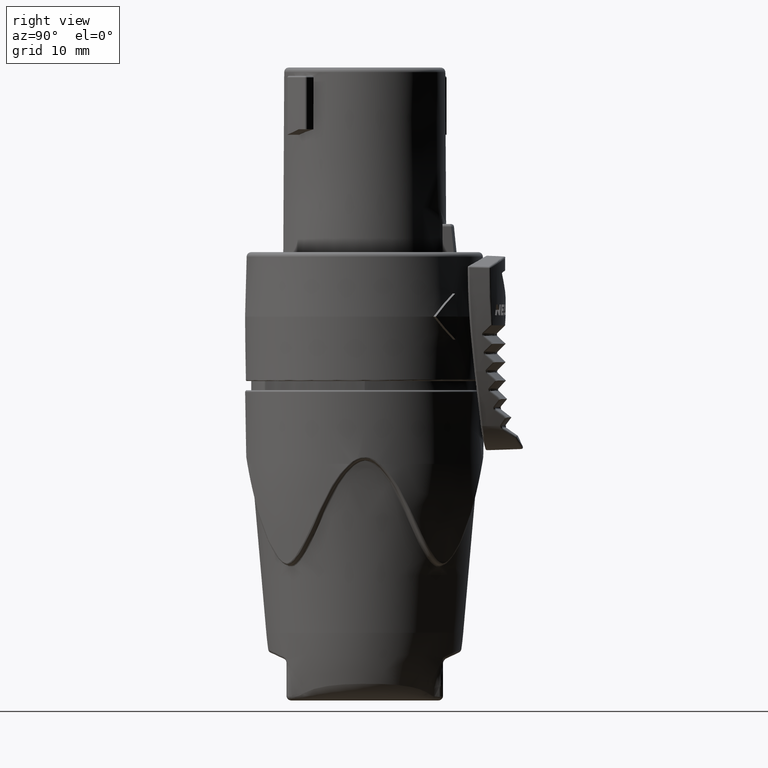
[diagram: clean part render]
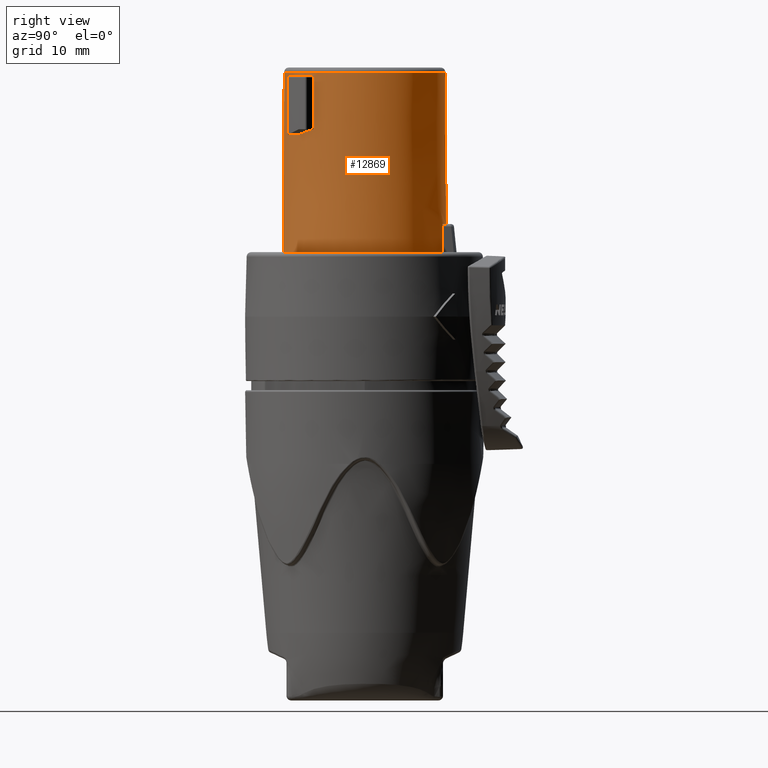
[diagram: same view with one face highlighted and labeled with its STEP entity id]
A machine part, right view. The second image highlights one B-rep face of the part: STEP entity #12869.
In plain terms, the highlighted conical surface has half-angle 0.291 deg.
Its self-contained STEP definition (entity closure, byte-faithful):
#2=CARTESIAN_POINT('',(0.E0,0.E0,2.955253771147E1));
#3=DIRECTION('',(0.E0,0.E0,-1.E0));
#4=DIRECTION('',(0.E0,1.E0,0.E0));
#5=AXIS2_PLACEMENT_3D('',#2,#3,#4);
#374=CARTESIAN_POINT('',(2.6E0,8.442469314720E0,1.305E1));
#375=CARTESIAN_POINT('',(2.6E0,8.447868552382E0,1.203333333571E1));
#376=CARTESIAN_POINT('',(2.6E0,8.453267341372E0,1.101666666904E1));
#377=CARTESIAN_POINT('',(2.6E0,8.458665684263E0,1.E1));
#383=CARTESIAN_POINT('',(6.776809895754E0,-5.585982544906E0,2.334981907153E1));
#384=CARTESIAN_POINT('',(6.617204337442E0,-5.780049448619E0,2.329172739908E1));
#385=CARTESIAN_POINT('',(6.283824538226E0,-6.150254838396E0,2.317012139330E1));
#386=CARTESIAN_POINT('',(5.732879583647E0,-6.669017694595E0,2.296970251727E1));
#387=CARTESIAN_POINT('',(5.335825114422E0,-6.982479121226E0,2.282516235616E1));
#388=CARTESIAN_POINT('',(5.129318238067E0,-7.131479158159E0,2.275E1));
#390=CARTESIAN_POINT('',(0.E0,0.E0,1.E1));
#391=DIRECTION('',(0.E0,0.E0,-1.E0));
#392=DIRECTION('',(2.938105858564E-1,9.558636616373E-1,0.E0));
#393=AXIS2_PLACEMENT_3D('',#390,#391,#392);
#417=CARTESIAN_POINT('',(0.E0,0.E0,2.275E1));
#418=DIRECTION('',(0.E0,0.E0,1.E0));
#419=DIRECTION('',(4.925094846230E-1,-8.703070765864E-1,0.E0));
#420=AXIS2_PLACEMENT_3D('',#417,#418,#419);
#467=DIRECTION('',(0.E0,-5.075422946028E-3,9.999871199580E-1));
#468=VECTOR('',#467,1.650275026759E1);
#469=CARTESIAN_POINT('',(0.E0,8.833758437381E0,1.305E1));
#470=LINE('',#469,#468);
#471=DIRECTION('',(0.E0,5.075422946028E-3,9.999871199580E-1));
#472=VECTOR('',#471,1.955278955222E1);
#473=CARTESIAN_POINT('',(0.E0,-8.849238676752E0,1.E1));
#474=LINE('',#473,#472);
#534=CARTESIAN_POINT('',(0.E0,0.E0,2.915E1));
#535=DIRECTION('',(0.E0,0.E0,1.E0));
#536=DIRECTION('',(5.119722928468E-1,-8.590019623710E-1,0.E0));
#537=AXIS2_PLACEMENT_3D('',#534,#535,#536);
#614=DIRECTION('',(3.318121349697E-3,-3.954383039166E-3,-9.999866763740E-1));
#615=VECTOR('',#614,6.200082607582E0);
#616=CARTESIAN_POINT('',(4.305889845289E0,-7.620717815415E0,2.895E1));
#617=LINE('',#616,#615);
#631=CARTESIAN_POINT('',(4.305889845289E0,-7.620717815415E0,2.895E1));
#632=CARTESIAN_POINT('',(4.305803649247E0,-7.620615090972E0,2.897597540860E1));
#633=CARTESIAN_POINT('',(4.314688601245E0,-7.615302253301E0,2.902804076454E1));
#634=CARTESIAN_POINT('',(4.353711420069E0,-7.592723436334E0,2.909483317261E1));
#635=CARTESIAN_POINT('',(4.411883662194E0,-7.558857101733E0,2.913937121475E1));
#636=CARTESIAN_POINT('',(4.457792451118E0,-7.531744651909E0,2.915E1));
#637=CARTESIAN_POINT('',(4.480805100291E0,-7.518028933590E0,2.915E1));
#644=DIRECTION('',(3.495879772846E-3,-3.961438233769E-3,-9.999860428185E-1));
#645=VECTOR('',#644,5.600259092307E0);
#646=CARTESIAN_POINT('',(6.757232063270E0,-5.563797464418E0,2.895E1));
#647=LINE('',#646,#645);
#656=CARTESIAN_POINT('',(6.625729541024E0,-5.718223626468E0,2.915E1));
#657=CARTESIAN_POINT('',(6.643232991354E0,-5.697942300637E0,2.915E1));
#658=CARTESIAN_POINT('',(6.677905519680E0,-5.657438996878E0,2.913937121475E1));
#659=CARTESIAN_POINT('',(6.721358852396E0,-5.606031349110E0,2.909483317261E1));
#660=CARTESIAN_POINT('',(6.750370887776E0,-5.571522145008E0,2.902804076454E1));
#661=CARTESIAN_POINT('',(6.757145867228E0,-5.563694739975E0,2.897597540860E1));
#662=CARTESIAN_POINT('',(6.757232063270E0,-5.563797464418E0,2.895E1));
#741=CARTESIAN_POINT('',(0.E0,0.E0,1.305E1));
#742=DIRECTION('',(0.E0,0.E0,-1.E0));
#743=DIRECTION('',(2.547047234707E-1,9.670188746047E-1,0.E0));
#744=AXIS2_PLACEMENT_3D('',#741,#742,#743);
#779=CARTESIAN_POINT('',(0.E0,0.E0,1.305E1));
#780=DIRECTION('',(0.E0,0.E0,-1.E0));
#781=DIRECTION('',(0.E0,1.E0,0.E0));
#782=AXIS2_PLACEMENT_3D('',#779,#780,#781);
#11871=CARTESIAN_POINT('',(0.E0,8.75E0,2.955253771147E1));
#11873=VERTEX_POINT('',#11871);
#11875=CARTESIAN_POINT('',(0.E0,-8.75E0,2.955253771147E1));
#11877=VERTEX_POINT('',#11875);
#11883=CARTESIAN_POINT('',(2.6E0,8.442469314720E0,1.305E1));
#11884=VERTEX_POINT('',#11883);
#11903=CARTESIAN_POINT('',(4.305889845289E0,-7.620717815415E0,2.895E1));
#11904=CARTESIAN_POINT('',(4.326462471760E0,-7.645235316920E0,2.275E1));
#11905=VERTEX_POINT('',#11903);
#11906=VERTEX_POINT('',#11904);
#11917=CARTESIAN_POINT('',(6.625729541024E0,-5.718223626468E0,2.915E1));
#11918=VERTEX_POINT('',#11917);
#11920=CARTESIAN_POINT('',(6.757232063270E0,-5.563797464418E0,2.895E1));
#11922=VERTEX_POINT('',#11920);
#11923=CARTESIAN_POINT('',(4.480805100291E0,-7.518028933590E0,2.915E1));
#11924=VERTEX_POINT('',#11923);
#11950=CARTESIAN_POINT('',(5.129318238067E0,-7.131479158159E0,2.275E1));
#11952=VERTEX_POINT('',#11950);
#11959=CARTESIAN_POINT('',(6.776809895754E0,-5.585982544906E0,
2.334981907153E1));
#11960=VERTEX_POINT('',#11959);
#12193=CARTESIAN_POINT('',(2.6E0,8.458665684263E0,1.E1));
#12194=CARTESIAN_POINT('',(0.E0,-8.849238676752E0,1.E1));
#12195=VERTEX_POINT('',#12193);
#12196=VERTEX_POINT('',#12194);
#12343=CARTESIAN_POINT('',(0.E0,8.833758437381E0,1.305E1));
#12344=CARTESIAN_POINT('',(2.25E0,8.542411142646E0,1.305E1));
#12345=VERTEX_POINT('',#12343);
#12346=VERTEX_POINT('',#12344);
#12835=CARTESIAN_POINT('',(0.E0,0.E0,1.977626885574E1));
#12836=DIRECTION('',(0.E0,0.E0,-1.E0));
#12837=DIRECTION('',(0.E0,-1.E0,0.E0));
#12838=AXIS2_PLACEMENT_3D('',#12835,#12836,#12837);
#12839=CONICAL_SURFACE('',#12838,8.799619338376E0,2.908015625645E-1);
#12841=ORIENTED_EDGE('',*,*,#12840,.T.);
#12842=ORIENTED_EDGE('',*,*,#12827,.T.);
#12843=ORIENTED_EDGE('',*,*,#12774,.T.);
#12845=ORIENTED_EDGE('',*,*,#12844,.T.);
#12846=ORIENTED_EDGE('',*,*,#12399,.F.);
#12848=ORIENTED_EDGE('',*,*,#12847,.F.);
#12850=ORIENTED_EDGE('',*,*,#12849,.T.);
#12851=EDGE_LOOP('',(#12841,#12842,#12843,#12845,#12846,#12848,#12850));
#12852=FACE_OUTER_BOUND('',#12851,.F.);
#12854=ORIENTED_EDGE('',*,*,#12853,.T.);
#12856=ORIENTED_EDGE('',*,*,#12855,.F.);
#12858=ORIENTED_EDGE('',*,*,#12857,.F.);
#12860=ORIENTED_EDGE('',*,*,#12859,.F.);
#12862=ORIENTED_EDGE('',*,*,#12861,.F.);
#12864=ORIENTED_EDGE('',*,*,#12863,.F.);
#12866=ORIENTED_EDGE('',*,*,#12865,.T.);
#12867=EDGE_LOOP('',(#12854,#12856,#12858,#12860,#12862,#12864,#12866));
#12868=FACE_BOUND('',#12867,.F.);
#12869=ADVANCED_FACE('',(#12852,#12868),#12839,.T.);
#6=CIRCLE('',#5,8.75E0);
#378=B_SPLINE_CURVE_WITH_KNOTS('',3,(#374,#375,#376,#377),.UNSPECIFIED.,.F.,.F.,
(4,4),(0.E0,1.E0),.UNSPECIFIED.);
#389=B_SPLINE_CURVE_WITH_KNOTS('',3,(#383,#384,#385,#386,#387,#388),
.UNSPECIFIED.,.F.,.F.,(4,1,1,4),(0.E0,3.333333333333E-1,6.666666666667E-1,1.E0),
.UNSPECIFIED.);
#394=CIRCLE('',#393,8.849238676752E0);
#421=CIRCLE('',#420,8.784526200691E0);
#538=CIRCLE('',#537,8.752043075452E0);
#638=B_SPLINE_CURVE_WITH_KNOTS('',3,(#631,#632,#633,#634,#635,#636,#637),
.UNSPECIFIED.,.F.,.F.,(4,1,1,1,4),(0.E0,2.5E-1,5.E-1,7.5E-1,1.E0),
.UNSPECIFIED.);
#663=B_SPLINE_CURVE_WITH_KNOTS('',3,(#656,#657,#658,#659,#660,#661,#662),
.UNSPECIFIED.,.F.,.F.,(4,1,1,1,4),(0.E0,2.5E-1,5.E-1,7.5E-1,1.E0),
.UNSPECIFIED.);
#745=CIRCLE('',#744,8.833758437381E0);
#783=CIRCLE('',#782,8.833758437381E0);
#12399=EDGE_CURVE('',#11873,#11877,#6,.T.);
#12774=EDGE_CURVE('',#12195,#12196,#394,.T.);
#12827=EDGE_CURVE('',#11884,#12195,#378,.T.);
#12840=EDGE_CURVE('',#12346,#11884,#745,.T.);
#12844=EDGE_CURVE('',#12196,#11877,#474,.T.);
#12847=EDGE_CURVE('',#12345,#11873,#470,.T.);
#12849=EDGE_CURVE('',#12345,#12346,#783,.T.);
#12853=EDGE_CURVE('',#11906,#11952,#421,.T.);
#12855=EDGE_CURVE('',#11960,#11952,#389,.T.);
#12857=EDGE_CURVE('',#11922,#11960,#647,.T.);
#12859=EDGE_CURVE('',#11918,#11922,#663,.T.);
#12861=EDGE_CURVE('',#11924,#11918,#538,.T.);
#12863=EDGE_CURVE('',#11905,#11924,#638,.T.);
#12865=EDGE_CURVE('',#11905,#11906,#617,.T.);